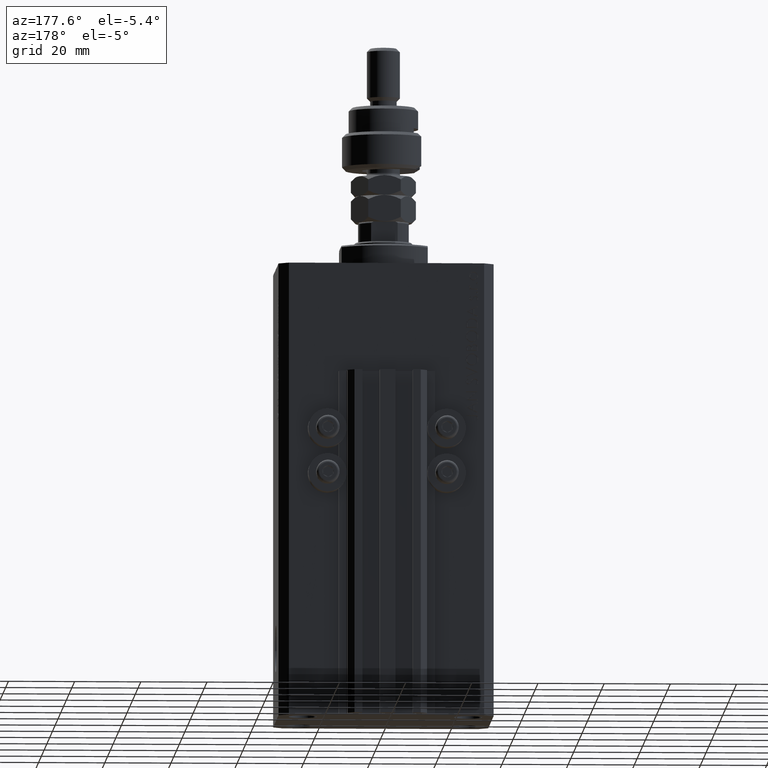
[diagram: clean part render]
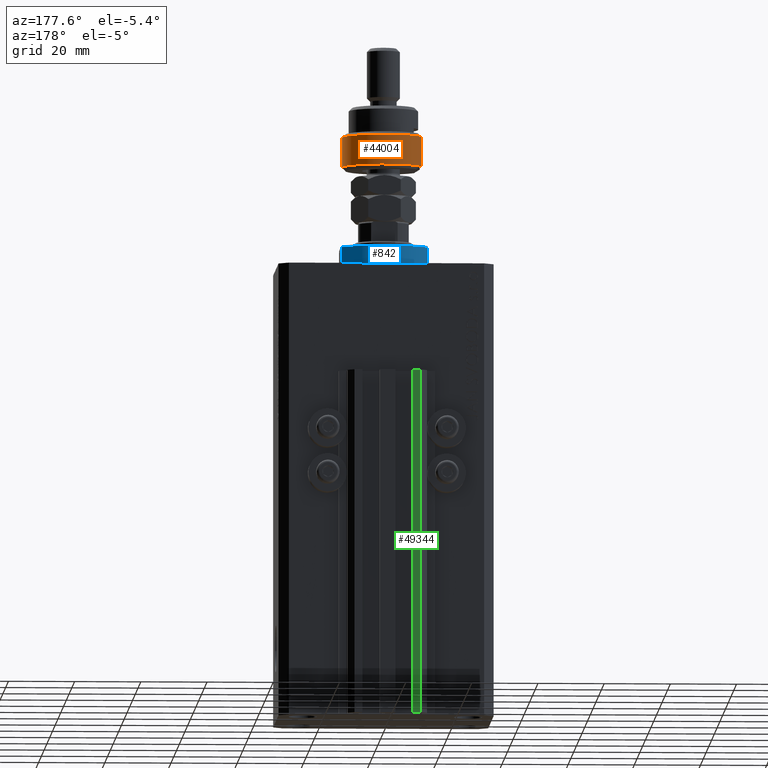
[diagram: same view with three faces highlighted in distinct colors, each labeled with its STEP entity id]
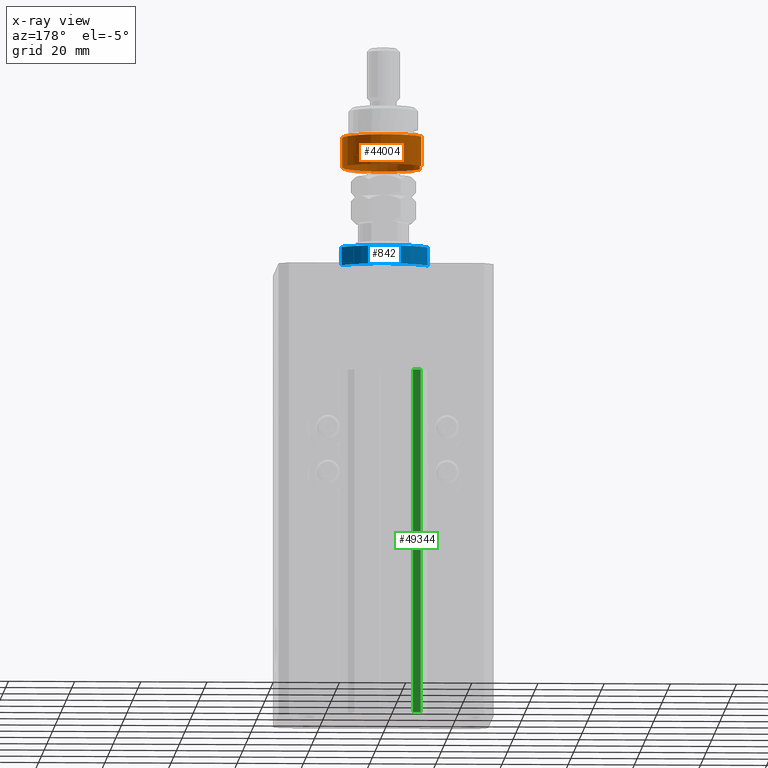
[diagram: x-ray of the same camera — body ghosted, the three highlighted faces saturated]
A machine part, auxiliary view with three faces highlighted in distinct colors.
The next image is the same camera in x-ray (body ghosted, the three faces saturated) — at least one of them is partly hidden behind the body in this view.
Their STEP definitions:

[orange] entity #44004 — the highlighted cylindrical surface (partial cylindrical patch) has radius 12.5 mm, axis along (-0, -0, -1).
#3202 = ORIENTED_EDGE ( 'NONE', *, *, #16561, .T. ) ;
#5240 = DIRECTION ( 'NONE',  ( -0.000000000000000000, -0.000000000000000000, 1.000000000000000000 ) ) ;
#5877 = CARTESIAN_POINT ( 'NONE',  ( -11.22497216032182443, 5.500000000000000000, 10.00000000000000000 ) ) ;
#6889 = CIRCLE ( 'NONE', #42485, 12.50000000000000000 ) ;
#8714 = DIRECTION ( 'NONE',  ( -0.000000000000000000, -0.000000000000000000, -1.000000000000000000 ) ) ;
#8866 = CYLINDRICAL_SURFACE ( 'NONE', #35776, 12.50000000000000000 ) ;
#8883 = DIRECTION ( 'NONE',  ( 1.000000000000000000, 0.000000000000000000, 0.000000000000000000 ) ) ;
#12187 = DIRECTION ( 'NONE',  ( 0.000000000000000000, 0.000000000000000000, -1.000000000000000000 ) ) ;
#12546 = LINE ( 'NONE', #20386, #21162 ) ;
#12567 = CARTESIAN_POINT ( 'NONE',  ( 0.000000000000000000, 0.000000000000000000, 0.9999999999999956701 ) ) ;
#14877 = VERTEX_POINT ( 'NONE', #41078 ) ;
#14968 = VECTOR ( 'NONE', #8714, 1000.000000000000000 ) ;
#16385 = CARTESIAN_POINT ( 'NONE',  ( 12.50000000000000000, 0.000000000000000000, 0.9999999999999956701 ) ) ;
#16561 = EDGE_CURVE ( 'NONE', #26401, #20224, #6889, .T. ) ;
#16699 = DIRECTION ( 'NONE',  ( -1.000000000000000000, 0.000000000000000000, 0.000000000000000000 ) ) ;
#16736 = EDGE_CURVE ( 'NONE', #42226, #26401, #31755, .T. ) ;
#16889 = EDGE_LOOP ( 'NONE', ( #27348, #41919, #19743, #3202, #36962 ) ) ;
#16942 = CARTESIAN_POINT ( 'NONE',  ( 0.000000000000000000, 0.000000000000000000, 11.00000000000000000 ) ) ;
#19743 = ORIENTED_EDGE ( 'NONE', *, *, #16736, .T. ) ;
#20224 = VERTEX_POINT ( 'NONE', #16385 ) ;
#20386 = CARTESIAN_POINT ( 'NONE',  ( -11.22497216032182443, 5.500000000000000000, 12.50000000000000000 ) ) ;
#21162 = VECTOR ( 'NONE', #36078, 1000.000000000000000 ) ;
#24726 = CARTESIAN_POINT ( 'NONE',  ( -11.22497216032182088, -5.500000000000007105, 0.9999999999999956701 ) ) ;
#26401 = VERTEX_POINT ( 'NONE', #24726 ) ;
#26402 = CARTESIAN_POINT ( 'NONE',  ( -11.22497216032182088, -5.500000000000007105, 10.00000000000000000 ) ) ;
#27348 = ORIENTED_EDGE ( 'NONE', *, *, #39455, .F. ) ;
#27454 = DIRECTION ( 'NONE',  ( -0.000000000000000000, -0.000000000000000000, 1.000000000000000000 ) ) ;
#28116 = EDGE_CURVE ( 'NONE', #37795, #42226, #46754, .T. ) ;
#31502 = CARTESIAN_POINT ( 'NONE',  ( 0.000000000000000000, 0.000000000000000000, 0.9999999999999956701 ) ) ;
#31755 = LINE ( 'NONE', #46928, #14968 ) ;
#35776 = AXIS2_PLACEMENT_3D ( 'NONE', #16942, #43058, #16699 ) ;
#36078 = DIRECTION ( 'NONE',  ( -0.000000000000000000, -0.000000000000000000, -1.000000000000000000 ) ) ;
#36962 = ORIENTED_EDGE ( 'NONE', *, *, #47237, .T. ) ;
#37795 = VERTEX_POINT ( 'NONE', #5877 ) ;
#39455 = EDGE_CURVE ( 'NONE', #37795, #14877, #12546, .T. ) ;
#40006 = FACE_OUTER_BOUND ( 'NONE', #16889, .T. ) ;
#40156 = DIRECTION ( 'NONE',  ( 1.000000000000000000, 0.000000000000000000, 0.000000000000000000 ) ) ;
#40305 = AXIS2_PLACEMENT_3D ( 'NONE', #46849, #12187, #8883 ) ;
#40716 = CIRCLE ( 'NONE', #45546, 12.50000000000000000 ) ;
#41078 = CARTESIAN_POINT ( 'NONE',  ( -11.22497216032182443, 5.500000000000000000, 0.9999999999999956701 ) ) ;
#41919 = ORIENTED_EDGE ( 'NONE', *, *, #28116, .T. ) ;
#42226 = VERTEX_POINT ( 'NONE', #26402 ) ;
#42485 = AXIS2_PLACEMENT_3D ( 'NONE', #12567, #5240, #40156 ) ;
#43058 = DIRECTION ( 'NONE',  ( -0.000000000000000000, -0.000000000000000000, -1.000000000000000000 ) ) ;
#44004 = ADVANCED_FACE ( 'NONE', ( #40006 ), #8866, .T. ) ;
#45546 = AXIS2_PLACEMENT_3D ( 'NONE', #31502, #27454, #46925 ) ;
#46754 = CIRCLE ( 'NONE', #40305, 12.50000000000000000 ) ;
#46849 = CARTESIAN_POINT ( 'NONE',  ( 0.000000000000000000, 0.000000000000000000, 10.00000000000000000 ) ) ;
#46925 = DIRECTION ( 'NONE',  ( 1.000000000000000000, 0.000000000000000000, 0.000000000000000000 ) ) ;
#46928 = CARTESIAN_POINT ( 'NONE',  ( -11.22497216032182088, -5.500000000000007105, 12.50000000000000000 ) ) ;
#47237 = EDGE_CURVE ( 'NONE', #20224, #14877, #40716, .T. ) ;

[blue] entity #842 — the highlighted cylindrical surface (partial cylindrical patch) has radius 16 mm, axis along (0, 0, -1).
#578 = CARTESIAN_POINT ( 'NONE',  ( 13.00000000000000000, 9.327379053088916905, -6.000000000000014211 ) ) ;
#842 = ADVANCED_FACE ( 'NONE', ( #18826 ), #10473, .T. ) ;
#2418 = LINE ( 'NONE', #13776, #48664 ) ;
#2768 = CARTESIAN_POINT ( 'NONE',  ( 0.000000000000000000, 0.000000000000000000, -0.4999999999999995559 ) ) ;
#3699 = ORIENTED_EDGE ( 'NONE', *, *, #45062, .T. ) ;
#6058 = DIRECTION ( 'NONE',  ( -0.000000000000000000, -0.000000000000000000, -1.000000000000000000 ) ) ;
#6697 = DIRECTION ( 'NONE',  ( -0.000000000000000000, -0.000000000000000000, 1.000000000000000000 ) ) ;
#7823 = AXIS2_PLACEMENT_3D ( 'NONE', #2768, #6058, #40487 ) ;
#9727 = AXIS2_PLACEMENT_3D ( 'NONE', #11485, #45899, #10728 ) ;
#10473 = CYLINDRICAL_SURFACE ( 'NONE', #9727, 16.00000000000000000 ) ;
#10556 = CARTESIAN_POINT ( 'NONE',  ( -13.00000000000000000, 9.327379053088916905, -6.000000000000014211 ) ) ;
#10728 = DIRECTION ( 'NONE',  ( 1.000000000000000000, 0.000000000000000000, 0.000000000000000000 ) ) ;
#11485 = CARTESIAN_POINT ( 'NONE',  ( 0.000000000000000000, 0.000000000000000000, -6.500000000000000000 ) ) ;
#13416 = CARTESIAN_POINT ( 'NONE',  ( -13.00000000000000000, 9.327379053088813876, -6.500000000000000000 ) ) ;
#13776 = CARTESIAN_POINT ( 'NONE',  ( 13.00000000000000000, 9.327379053088813876, -6.500000000000000000 ) ) ;
#16133 = VERTEX_POINT ( 'NONE', #29190 ) ;
#16649 = CARTESIAN_POINT ( 'NONE',  ( 13.00000000000000000, 9.327379053088815652, -0.4999999999999995559 ) ) ;
#18242 = DIRECTION ( 'NONE',  ( 0.000000000000000000, 0.000000000000000000, 1.000000000000000000 ) ) ;
#18826 = FACE_OUTER_BOUND ( 'NONE', #30038, .T. ) ;
#19992 = EDGE_CURVE ( 'NONE', #16133, #25592, #37739, .T. ) ;
#22246 = DIRECTION ( 'NONE',  ( -0.000000000000000000, -0.000000000000000000, 1.000000000000000000 ) ) ;
#25067 = ORIENTED_EDGE ( 'NONE', *, *, #19992, .T. ) ;
#25592 = VERTEX_POINT ( 'NONE', #16649 ) ;
#25962 = CIRCLE ( 'NONE', #32442, 16.00000000000000000 ) ;
#26076 = VECTOR ( 'NONE', #22246, 1000.000000000000000 ) ;
#26644 = ORIENTED_EDGE ( 'NONE', *, *, #42451, .T. ) ;
#26714 = ORIENTED_EDGE ( 'NONE', *, *, #39501, .F. ) ;
#29190 = CARTESIAN_POINT ( 'NONE',  ( -13.00000000000000000, 9.327379053088815652, -0.4999999999999995559 ) ) ;
#30038 = EDGE_LOOP ( 'NONE', ( #26714, #26644, #3699, #25067 ) ) ;
#32147 = VERTEX_POINT ( 'NONE', #578 ) ;
#32442 = AXIS2_PLACEMENT_3D ( 'NONE', #32932, #18242, #48610 ) ;
#32691 = VERTEX_POINT ( 'NONE', #10556 ) ;
#32932 = CARTESIAN_POINT ( 'NONE',  ( 0.000000000000000000, 0.000000000000000000, -6.000000000000023981 ) ) ;
#37739 = CIRCLE ( 'NONE', #7823, 16.00000000000000000 ) ;
#39501 = EDGE_CURVE ( 'NONE', #32147, #25592, #2418, .T. ) ;
#40487 = DIRECTION ( 'NONE',  ( 1.000000000000000000, -8.881784197001252323E-16, 0.000000000000000000 ) ) ;
#41253 = LINE ( 'NONE', #13416, #26076 ) ;
#42451 = EDGE_CURVE ( 'NONE', #32147, #32691, #25962, .T. ) ;
#45062 = EDGE_CURVE ( 'NONE', #32691, #16133, #41253, .T. ) ;
#45899 = DIRECTION ( 'NONE',  ( -0.000000000000000000, -0.000000000000000000, 1.000000000000000000 ) ) ;
#48610 = DIRECTION ( 'NONE',  ( -1.000000000000000000, 0.000000000000000000, 0.000000000000000000 ) ) ;
#48664 = VECTOR ( 'NONE', #6697, 1000.000000000000000 ) ;

[green] entity #49344 — the highlighted planar face has unit normal (0, 1, 0).
#786 = VECTOR ( 'NONE', #13796, 1000.000000000000000 ) ;
#1359 = LINE ( 'NONE', #16507, #37669 ) ;
#1869 = CARTESIAN_POINT ( 'NONE',  ( -10.00000000000000000, 30.49999999999948841, -33.00000000000000000 ) ) ;
#2297 = PLANE ( 'NONE',  #44033 ) ;
#2435 = LINE ( 'NONE', #40399, #786 ) ;
#2809 = DIRECTION ( 'NONE',  ( 0.000000000000000000, 0.000000000000000000, 1.000000000000000000 ) ) ;
#3354 = CARTESIAN_POINT ( 'NONE',  ( -7.650000000000000355, 30.49999999999948486, -137.0000000000000000 ) ) ;
#3628 = VECTOR ( 'NONE', #37103, 1000.000000000000000 ) ;
#6605 = ORIENTED_EDGE ( 'NONE', *, *, #47934, .T. ) ;
#9862 = FACE_OUTER_BOUND ( 'NONE', #27175, .T. ) ;
#10434 = EDGE_CURVE ( 'NONE', #33678, #48858, #37612, .T. ) ;
#13796 = DIRECTION ( 'NONE',  ( -1.000000000000000000, 1.476360405086644852E-15, 0.000000000000000000 ) ) ;
#13995 = VERTEX_POINT ( 'NONE', #3354 ) ;
#16501 = VECTOR ( 'NONE', #2809, 1000.000000000000000 ) ;
#16507 = CARTESIAN_POINT ( 'NONE',  ( -7.650000000000000355, 30.49999999999948486, -137.0000000000000000 ) ) ;
#17615 = ORIENTED_EDGE ( 'NONE', *, *, #33073, .T. ) ;
#19536 = EDGE_CURVE ( 'NONE', #13995, #33678, #1359, .T. ) ;
#22264 = LINE ( 'NONE', #37468, #16501 ) ;
#24345 = VERTEX_POINT ( 'NONE', #49121 ) ;
#25205 = CARTESIAN_POINT ( 'NONE',  ( -7.650000000000000355, 30.49999999999948486, -33.00000000000000000 ) ) ;
#25554 = DIRECTION ( 'NONE',  ( 1.476360405086645049E-15, 1.000000000000000000, -0.000000000000000000 ) ) ;
#27175 = EDGE_LOOP ( 'NONE', ( #48194, #42971, #17615, #6605 ) ) ;
#28660 = DIRECTION ( 'NONE',  ( 0.000000000000000000, 0.000000000000000000, 1.000000000000000000 ) ) ;
#33073 = EDGE_CURVE ( 'NONE', #13995, #24345, #2435, .T. ) ;
#33678 = VERTEX_POINT ( 'NONE', #47988 ) ;
#37103 = DIRECTION ( 'NONE',  ( -1.000000000000000000, 1.476360405086644852E-15, 0.000000000000000000 ) ) ;
#37468 = CARTESIAN_POINT ( 'NONE',  ( -10.00000000000000000, 30.49999999999948841, -137.0000000000000000 ) ) ;
#37612 = LINE ( 'NONE', #25205, #3628 ) ;
#37669 = VECTOR ( 'NONE', #28660, 1000.000000000000000 ) ;
#40399 = CARTESIAN_POINT ( 'NONE',  ( -7.650000000000000355, 30.49999999999948486, -137.0000000000000000 ) ) ;
#41010 = DIRECTION ( 'NONE',  ( -1.000000000000000000, 1.476360405086645049E-15, 0.000000000000000000 ) ) ;
#42971 = ORIENTED_EDGE ( 'NONE', *, *, #19536, .F. ) ;
#44033 = AXIS2_PLACEMENT_3D ( 'NONE', #45039, #25554, #41010 ) ;
#45039 = CARTESIAN_POINT ( 'NONE',  ( -7.650000000000000355, 30.49999999999948486, -137.0000000000000000 ) ) ;
#47934 = EDGE_CURVE ( 'NONE', #24345, #48858, #22264, .T. ) ;
#47988 = CARTESIAN_POINT ( 'NONE',  ( -7.650000000000000355, 30.49999999999948486, -33.00000000000000000 ) ) ;
#48194 = ORIENTED_EDGE ( 'NONE', *, *, #10434, .F. ) ;
#48858 = VERTEX_POINT ( 'NONE', #1869 ) ;
#49121 = CARTESIAN_POINT ( 'NONE',  ( -10.00000000000000000, 30.49999999999948841, -137.0000000000000000 ) ) ;
#49344 = ADVANCED_FACE ( 'NONE', ( #9862 ), #2297, .T. ) ;